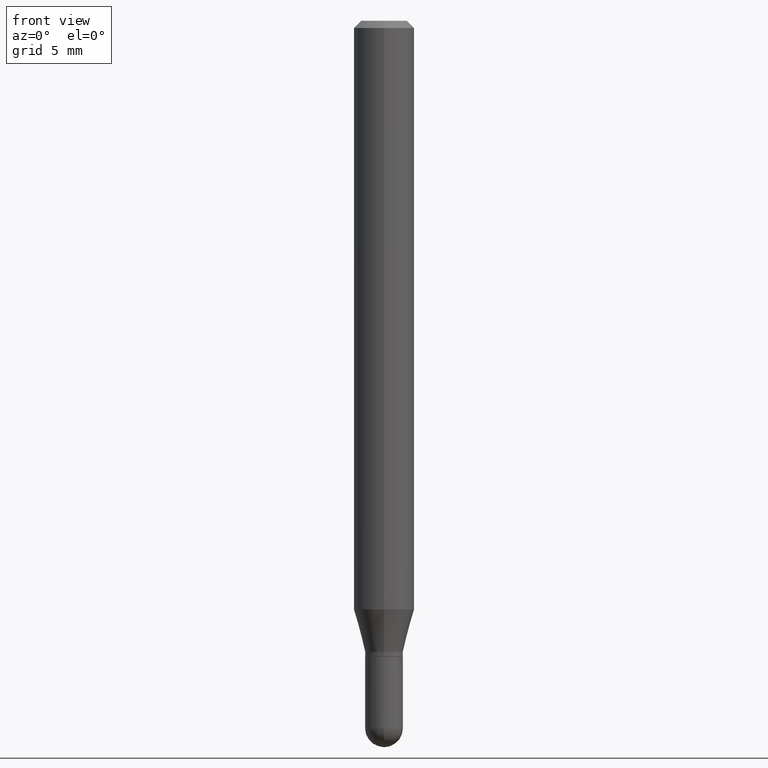
[diagram: clean part render]
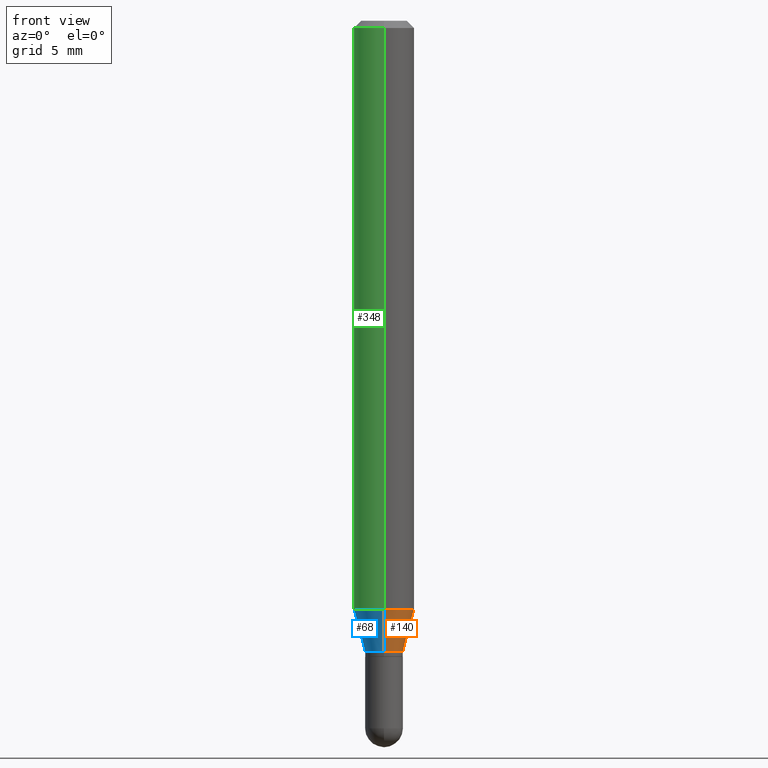
[diagram: same view with three faces highlighted in distinct colors, each labeled with its STEP entity id]
A machine part, front view with three faces highlighted in distinct colors.
Their STEP definitions:

[orange] entity #140 — the highlighted conical surface has half-angle 15 deg.
#26 = ORIENTED_EDGE ( 'NONE', *, *, #90, .T. ) ;
#28 = VECTOR ( 'NONE', #447, 39.37007874015748854 ) ;
#50 = CARTESIAN_POINT ( 'NONE',  ( 3.607780740822223794E-16, 0.03904999999999564375, -1.303000000000000380 ) ) ;
#58 = AXIS2_PLACEMENT_3D ( 'NONE', #96, #97, #498 ) ;
#71 = VERTEX_POINT ( 'NONE', #194 ) ;
#90 = EDGE_CURVE ( 'NONE', #472, #71, #403, .T. ) ;
#96 = CARTESIAN_POINT ( 'NONE',  ( 3.186757026791946487E-29, -4.548954568021346593E-15, -1.303000000000000380 ) ) ;
#97 = DIRECTION ( 'NONE',  ( -2.445707618412851174E-29, 3.491139346140710505E-15, 1.000000000000000000 ) ) ;
#101 = ORIENTED_EDGE ( 'NONE', *, *, #360, .T. ) ;
#116 = AXIS2_PLACEMENT_3D ( 'NONE', #275, #183, #269 ) ;
#140 = ADVANCED_FACE ( 'NONE', ( #295 ), #224, .T. ) ;
#157 = CARTESIAN_POINT ( 'NONE',  ( 3.186757026791946487E-29, -4.548954568021346593E-15, -1.303000000000000380 ) ) ;
#163 = EDGE_CURVE ( 'NONE', #488, #314, #386, .T. ) ;
#183 = DIRECTION ( 'NONE',  ( -2.445707618412851174E-29, 3.491139346140710505E-15, 1.000000000000000000 ) ) ;
#194 = CARTESIAN_POINT ( 'NONE',  ( 4.440892098500920012E-16, 0.06249999999999571176, -1.215483408562511247 ) ) ;
#205 = CIRCLE ( 'NONE', #116, 0.06250000000000000000 ) ;
#211 = EDGE_CURVE ( 'NONE', #314, #71, #205, .T. ) ;
#218 = CARTESIAN_POINT ( 'NONE',  ( -2.726846925636181991E-16, -0.03905000000000474758, -1.303000000000000380 ) ) ;
#224 = CONICAL_SURFACE ( 'NONE', #58, 0.03905000000000019567, 0.2617993877991500740 ) ;
#269 = DIRECTION ( 'NONE',  ( -6.982962677686265922E-15, -1.000000000000000000, 4.370956789862821150E-15 ) ) ;
#275 = CARTESIAN_POINT ( 'NONE',  ( 2.972717032375753484E-29, -4.243421952213807454E-15, -1.215483408562511025 ) ) ;
#291 = CIRCLE ( 'NONE', #474, 0.03905000000000019567 ) ;
#295 = FACE_OUTER_BOUND ( 'NONE', #396, .T. ) ;
#314 = VERTEX_POINT ( 'NONE', #366 ) ;
#321 = DIRECTION ( 'NONE',  ( -2.445707618412851174E-29, 3.491139346140710505E-15, 1.000000000000000000 ) ) ;
#323 = DIRECTION ( 'NONE',  ( -6.982962677686265922E-15, -1.000000000000000000, 0.000000000000000000 ) ) ;
#334 = DIRECTION ( 'NONE',  ( -1.807323732225328562E-15, -0.2588190451025179639, 0.9659258262890690894 ) ) ;
#360 = EDGE_CURVE ( 'NONE', #488, #472, #291, .T. ) ;
#366 = CARTESIAN_POINT ( 'NONE',  ( -4.364351673553621364E-16, -0.06250000000000427436, -1.215483408562510803 ) ) ;
#386 = LINE ( 'NONE', #454, #449 ) ;
#396 = EDGE_LOOP ( 'NONE', ( #101, #26, #460, #401 ) ) ;
#401 = ORIENTED_EDGE ( 'NONE', *, *, #163, .F. ) ;
#403 = LINE ( 'NONE', #484, #28 ) ;
#447 = DIRECTION ( 'NONE',  ( 1.839019923739598738E-15, 0.2588190451025247363, 0.9659258262890673130 ) ) ;
#449 = VECTOR ( 'NONE', #334, 39.37007874015748854 ) ;
#454 = CARTESIAN_POINT ( 'NONE',  ( -2.726846925636181991E-16, -0.03905000000000474758, -1.303000000000000380 ) ) ;
#460 = ORIENTED_EDGE ( 'NONE', *, *, #211, .F. ) ;
#472 = VERTEX_POINT ( 'NONE', #50 ) ;
#474 = AXIS2_PLACEMENT_3D ( 'NONE', #157, #321, #323 ) ;
#484 = CARTESIAN_POINT ( 'NONE',  ( 2.774669383143523138E-16, 0.03904999999999564375, -1.303000000000000380 ) ) ;
#488 = VERTEX_POINT ( 'NONE', #218 ) ;
#498 = DIRECTION ( 'NONE',  ( -6.982962677686265922E-15, -1.000000000000000000, 0.000000000000000000 ) ) ;

[blue] entity #68 — the highlighted conical surface has half-angle 15 deg.
#28 = VECTOR ( 'NONE', #447, 39.37007874015748854 ) ;
#44 = FACE_OUTER_BOUND ( 'NONE', #419, .T. ) ;
#50 = CARTESIAN_POINT ( 'NONE',  ( 3.607780740822223794E-16, 0.03904999999999564375, -1.303000000000000380 ) ) ;
#51 = DIRECTION ( 'NONE',  ( -2.445707618412851174E-29, 3.491139346140710505E-15, 1.000000000000000000 ) ) ;
#68 = ADVANCED_FACE ( 'NONE', ( #44 ), #203, .T. ) ;
#71 = VERTEX_POINT ( 'NONE', #194 ) ;
#76 = EDGE_CURVE ( 'NONE', #71, #314, #463, .T. ) ;
#90 = EDGE_CURVE ( 'NONE', #472, #71, #403, .T. ) ;
#99 = AXIS2_PLACEMENT_3D ( 'NONE', #136, #252, #221 ) ;
#123 = DIRECTION ( 'NONE',  ( -2.445707618412851174E-29, 3.491139346140710505E-15, 1.000000000000000000 ) ) ;
#136 = CARTESIAN_POINT ( 'NONE',  ( 3.186757026791946487E-29, -4.548954568021346593E-15, -1.303000000000000380 ) ) ;
#147 = ORIENTED_EDGE ( 'NONE', *, *, #164, .T. ) ;
#149 = ORIENTED_EDGE ( 'NONE', *, *, #90, .F. ) ;
#162 = AXIS2_PLACEMENT_3D ( 'NONE', #288, #51, #201 ) ;
#163 = EDGE_CURVE ( 'NONE', #488, #314, #386, .T. ) ;
#164 = EDGE_CURVE ( 'NONE', #472, #488, #250, .T. ) ;
#194 = CARTESIAN_POINT ( 'NONE',  ( 4.440892098500920012E-16, 0.06249999999999571176, -1.215483408562511247 ) ) ;
#201 = DIRECTION ( 'NONE',  ( -6.982962677686265922E-15, -1.000000000000000000, 4.370956789862821150E-15 ) ) ;
#203 = CONICAL_SURFACE ( 'NONE', #411, 0.03905000000000019567, 0.2617993877991500740 ) ;
#218 = CARTESIAN_POINT ( 'NONE',  ( -2.726846925636181991E-16, -0.03905000000000474758, -1.303000000000000380 ) ) ;
#221 = DIRECTION ( 'NONE',  ( -6.982962677686265922E-15, -1.000000000000000000, 0.000000000000000000 ) ) ;
#250 = CIRCLE ( 'NONE', #99, 0.03905000000000019567 ) ;
#252 = DIRECTION ( 'NONE',  ( -2.445707618412851174E-29, 3.491139346140710505E-15, 1.000000000000000000 ) ) ;
#264 = ORIENTED_EDGE ( 'NONE', *, *, #163, .T. ) ;
#288 = CARTESIAN_POINT ( 'NONE',  ( 2.972717032375753484E-29, -4.243421952213807454E-15, -1.215483408562511025 ) ) ;
#314 = VERTEX_POINT ( 'NONE', #366 ) ;
#325 = CARTESIAN_POINT ( 'NONE',  ( 3.186757026791946487E-29, -4.548954568021346593E-15, -1.303000000000000380 ) ) ;
#334 = DIRECTION ( 'NONE',  ( -1.807323732225328562E-15, -0.2588190451025179639, 0.9659258262890690894 ) ) ;
#366 = CARTESIAN_POINT ( 'NONE',  ( -4.364351673553621364E-16, -0.06250000000000427436, -1.215483408562510803 ) ) ;
#386 = LINE ( 'NONE', #454, #449 ) ;
#403 = LINE ( 'NONE', #484, #28 ) ;
#408 = DIRECTION ( 'NONE',  ( -6.982962677686265922E-15, -1.000000000000000000, 0.000000000000000000 ) ) ;
#411 = AXIS2_PLACEMENT_3D ( 'NONE', #325, #123, #408 ) ;
#419 = EDGE_LOOP ( 'NONE', ( #149, #147, #264, #480 ) ) ;
#447 = DIRECTION ( 'NONE',  ( 1.839019923739598738E-15, 0.2588190451025247363, 0.9659258262890673130 ) ) ;
#449 = VECTOR ( 'NONE', #334, 39.37007874015748854 ) ;
#454 = CARTESIAN_POINT ( 'NONE',  ( -2.726846925636181991E-16, -0.03905000000000474758, -1.303000000000000380 ) ) ;
#463 = CIRCLE ( 'NONE', #162, 0.06250000000000000000 ) ;
#472 = VERTEX_POINT ( 'NONE', #50 ) ;
#480 = ORIENTED_EDGE ( 'NONE', *, *, #76, .F. ) ;
#484 = CARTESIAN_POINT ( 'NONE',  ( 2.774669383143523138E-16, 0.03904999999999564375, -1.303000000000000380 ) ) ;
#488 = VERTEX_POINT ( 'NONE', #218 ) ;

[green] entity #348 — the highlighted cylindrical surface (edge-blend (fillet) strip) has radius 1.5875 mm, axis along (-0, 0, 1).
#5 = CYLINDRICAL_SURFACE ( 'NONE', #29, 0.06250000000000001388 ) ;
#6 = DIRECTION ( 'NONE',  ( -2.445707618412851454E-29, 3.491139346140710505E-15, 1.000000000000000000 ) ) ;
#11 = ORIENTED_EDGE ( 'NONE', *, *, #112, .F. ) ;
#12 = AXIS2_PLACEMENT_3D ( 'NONE', #53, #439, #14 ) ;
#14 = DIRECTION ( 'NONE',  ( -6.982962677686265922E-15, -1.000000000000000000, 3.483106191921934765E-15 ) ) ;
#29 = AXIS2_PLACEMENT_3D ( 'NONE', #475, #444, #159 ) ;
#51 = DIRECTION ( 'NONE',  ( -2.445707618412851174E-29, 3.491139346140710505E-15, 1.000000000000000000 ) ) ;
#53 = CARTESIAN_POINT ( 'NONE',  ( 3.668561427619468125E-31, -5.236709019211339271E-17, -0.01500000000000078354 ) ) ;
#60 = CARTESIAN_POINT ( 'NONE',  ( -4.364351673553916694E-16, -0.06250000000000001388, 2.181962091337944559E-16 ) ) ;
#71 = VERTEX_POINT ( 'NONE', #194 ) ;
#76 = EDGE_CURVE ( 'NONE', #71, #314, #463, .T. ) ;
#84 = VECTOR ( 'NONE', #6, 39.37007874015748143 ) ;
#112 = EDGE_CURVE ( 'NONE', #308, #184, #316, .T. ) ;
#159 = DIRECTION ( 'NONE',  ( -6.982962677686265133E-15, -1.000000000000000000, 3.491139346140710505E-15 ) ) ;
#162 = AXIS2_PLACEMENT_3D ( 'NONE', #288, #51, #201 ) ;
#184 = VERTEX_POINT ( 'NONE', #361 ) ;
#194 = CARTESIAN_POINT ( 'NONE',  ( 4.440892098500920012E-16, 0.06249999999999571176, -1.215483408562511247 ) ) ;
#201 = DIRECTION ( 'NONE',  ( -6.982962677686265922E-15, -1.000000000000000000, 4.370956789862821150E-15 ) ) ;
#240 = CARTESIAN_POINT ( 'NONE',  ( 4.440892098500924943E-16, 0.06249999999999995837, -0.01500000000000100038 ) ) ;
#258 = DIRECTION ( 'NONE',  ( -2.445707618412851454E-29, 3.491139346140710505E-15, 1.000000000000000000 ) ) ;
#271 = ORIENTED_EDGE ( 'NONE', *, *, #76, .T. ) ;
#288 = CARTESIAN_POINT ( 'NONE',  ( 2.972717032375753484E-29, -4.243421952213807454E-15, -1.215483408562511025 ) ) ;
#303 = ORIENTED_EDGE ( 'NONE', *, *, #422, .T. ) ;
#308 = VERTEX_POINT ( 'NONE', #240 ) ;
#314 = VERTEX_POINT ( 'NONE', #366 ) ;
#316 = CIRCLE ( 'NONE', #12, 0.06250000000000001388 ) ;
#327 = VECTOR ( 'NONE', #258, 39.37007874015748143 ) ;
#339 = LINE ( 'NONE', #453, #327 ) ;
#341 = LINE ( 'NONE', #60, #84 ) ;
#348 = ADVANCED_FACE ( 'NONE', ( #402 ), #5, .T. ) ;
#361 = CARTESIAN_POINT ( 'NONE',  ( -4.364351673553913736E-16, -0.06250000000000006939, -0.01500000000000056496 ) ) ;
#362 = ORIENTED_EDGE ( 'NONE', *, *, #486, .F. ) ;
#366 = CARTESIAN_POINT ( 'NONE',  ( -4.364351673553621364E-16, -0.06250000000000427436, -1.215483408562510803 ) ) ;
#372 = EDGE_LOOP ( 'NONE', ( #362, #271, #303, #11 ) ) ;
#402 = FACE_OUTER_BOUND ( 'NONE', #372, .T. ) ;
#422 = EDGE_CURVE ( 'NONE', #314, #184, #341, .T. ) ;
#439 = DIRECTION ( 'NONE',  ( -2.445707618412851174E-29, 3.491139346140710505E-15, 1.000000000000000000 ) ) ;
#444 = DIRECTION ( 'NONE',  ( -2.445707618412851174E-29, 3.491139346140710505E-15, 1.000000000000000000 ) ) ;
#453 = CARTESIAN_POINT ( 'NONE',  ( 4.440892098500626162E-16, 0.06250000000000001388, -2.181962091337944559E-16 ) ) ;
#463 = CIRCLE ( 'NONE', #162, 0.06250000000000000000 ) ;
#475 = CARTESIAN_POINT ( 'NONE',  ( 0.000000000000000000, 0.000000000000000000, 0.000000000000000000 ) ) ;
#486 = EDGE_CURVE ( 'NONE', #71, #308, #339, .T. ) ;